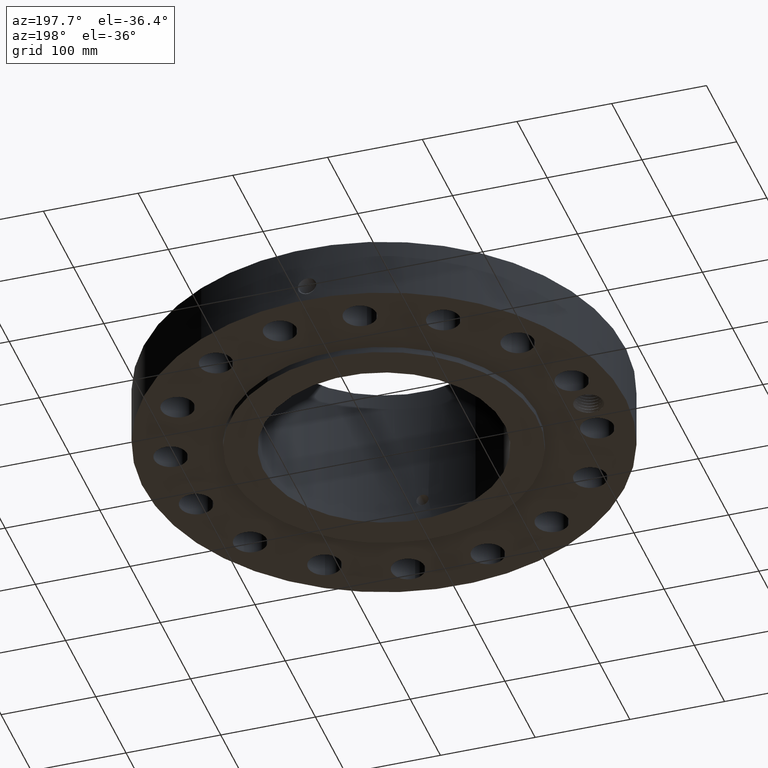
[diagram: clean part render]
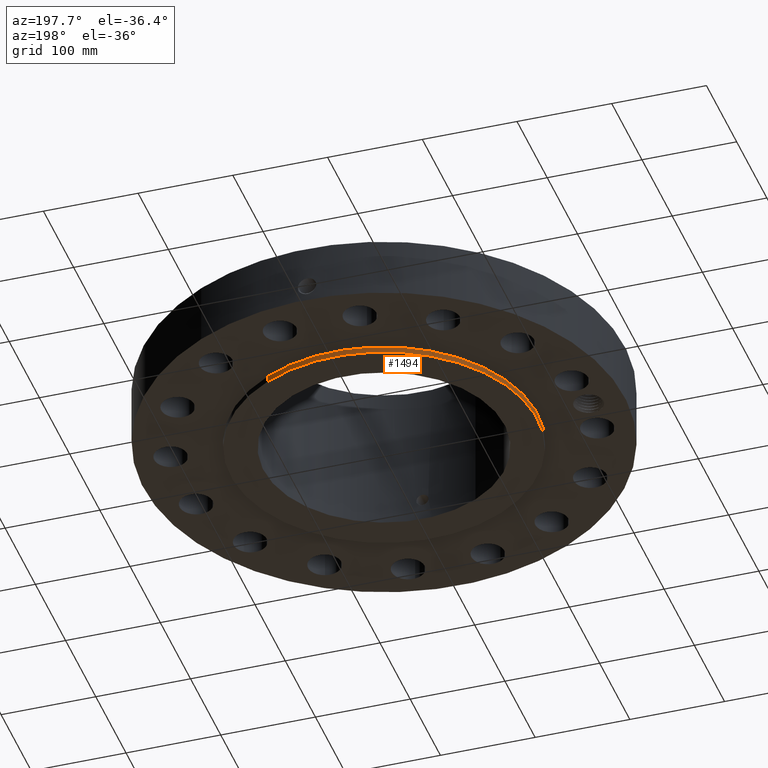
[diagram: same view with one face highlighted and labeled with its STEP entity id]
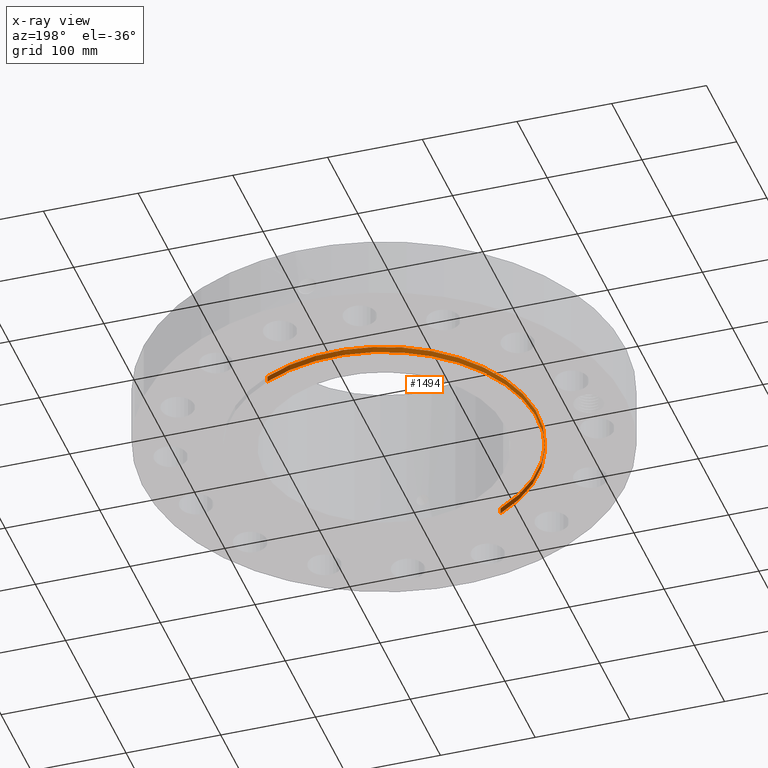
[diagram: x-ray of the same camera — body ghosted, the highlighted face saturated]
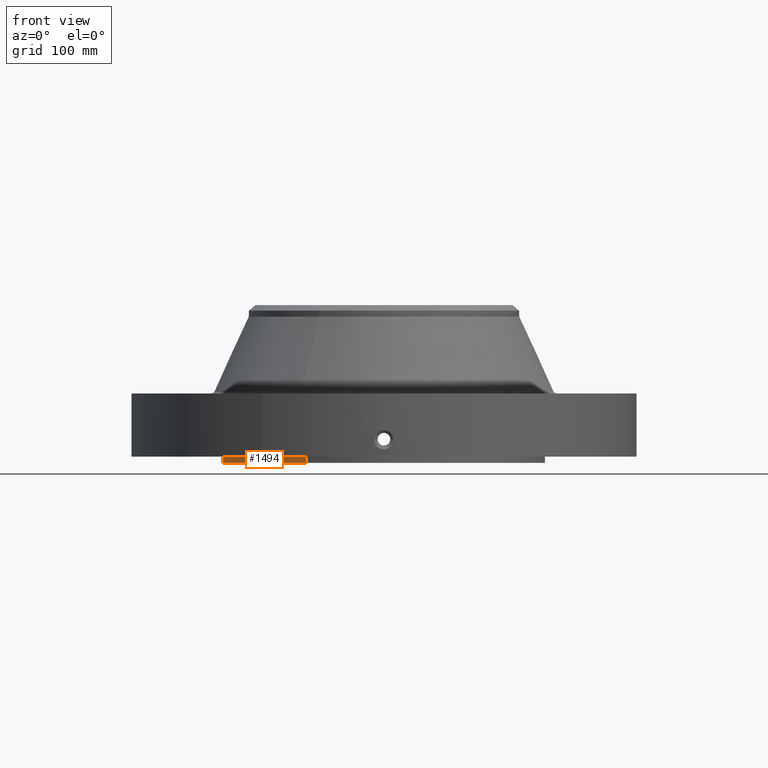
[diagram: same view with one face highlighted and labeled with its STEP entity id]
A machine part, auxiliary view. The second image highlights one B-rep face of the part: STEP entity #1494.
The next image is the same camera in x-ray: the body ghosted, the highlighted face saturated — about 0% of this face is hidden behind the body in this view.
A second angle (front view) of the same face is appended — the face is thin or edge-on in the first view.
In plain terms, the highlighted cylindrical surface (partial cylindrical patch) has radius 161.925 mm, axis along (0, 0, -1).
Its self-contained STEP definition (entity closure, byte-faithful):
#267=AXIS2_PLACEMENT_3D('Circle Axis2P3D',#265,#266,$) ;
#1455=AXIS2_PLACEMENT_3D('Cylinder Axis2P3D',#1452,#1453,#1454) ;
#1485=AXIS2_PLACEMENT_3D('Circle Axis2P3D',#1483,#1484,$) ;
#260=CARTESIAN_POINT('Vertex',(3.05633780861,5.59458883207,0.250000000001)) ;
#262=CARTESIAN_POINT('Vertex',(-3.05633780861,-5.59458883207,0.250000000001)) ;
#265=CARTESIAN_POINT('Axis2P3D Location',(0.,0.,0.250000000001)) ;
#1452=CARTESIAN_POINT('Axis2P3D Location',(0.,0.,3.12500000001)) ;
#1461=CARTESIAN_POINT('Vertex',(3.05633780861,5.59458883207,5.59482469102E-016)) ;
#1463=CARTESIAN_POINT('Vertex',(-3.05633780861,-5.59458883207,5.59482469102E-016)) ;
#1466=CARTESIAN_POINT('Line Origine',(3.05633780861,5.59458883207,0.125000000001)) ;
#1471=CARTESIAN_POINT('Line Origine',(-3.05633780861,-5.59458883207,0.125000000001)) ;
#1483=CARTESIAN_POINT('Axis2P3D Location',(0.,0.,5.59482469102E-016)) ;
#266=DIRECTION('Axis2P3D Direction',(0.,0.,-0.0393700787402)) ;
#1453=DIRECTION('Axis2P3D Direction',(0.,0.,-0.0393700787402)) ;
#1454=DIRECTION('Axis2P3D XDirection',(-0.0188750212049,-0.0345504945626,0.)) ;
#1467=DIRECTION('Vector Direction',(0.,0.,-0.0393700787402)) ;
#1472=DIRECTION('Vector Direction',(0.,0.,-0.0393700787402)) ;
#1484=DIRECTION('Axis2P3D Direction',(0.,0.,-0.0393700787402)) ;
#1468=VECTOR('Line Direction',#1467,0.0393700787402) ;
#1473=VECTOR('Line Direction',#1472,0.0393700787402) ;
#1489=ORIENTED_EDGE('',*,*,#1487,.F.) ;
#1490=ORIENTED_EDGE('',*,*,#1475,.T.) ;
#1491=ORIENTED_EDGE('',*,*,#269,.T.) ;
#1492=ORIENTED_EDGE('',*,*,#1470,.F.) ;
#1494=ADVANCED_FACE('PartBody',(#1493),#1456,.T.) ;
#268=CIRCLE('generated circle',#267,6.37500000003) ;
#1486=CIRCLE('generated circle',#1485,6.37500000003) ;
#1456=CYLINDRICAL_SURFACE('generated cylinder',#1455,6.37500000003) ;
#269=EDGE_CURVE('',#263,#261,#268,.T.) ;
#1470=EDGE_CURVE('',#1462,#261,#1469,.F.) ;
#1475=EDGE_CURVE('',#1464,#263,#1474,.F.) ;
#1487=EDGE_CURVE('',#1464,#1462,#1486,.T.) ;
#1488=EDGE_LOOP('',(#1489,#1490,#1491,#1492)) ;
#1493=FACE_OUTER_BOUND('',#1488,.T.) ;
#1469=LINE('Line',#1466,#1468) ;
#1474=LINE('Line',#1471,#1473) ;
#261=VERTEX_POINT('',#260) ;
#263=VERTEX_POINT('',#262) ;
#1462=VERTEX_POINT('',#1461) ;
#1464=VERTEX_POINT('',#1463) ;